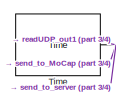
[diagram: root canvas - part 1/4, top center region]
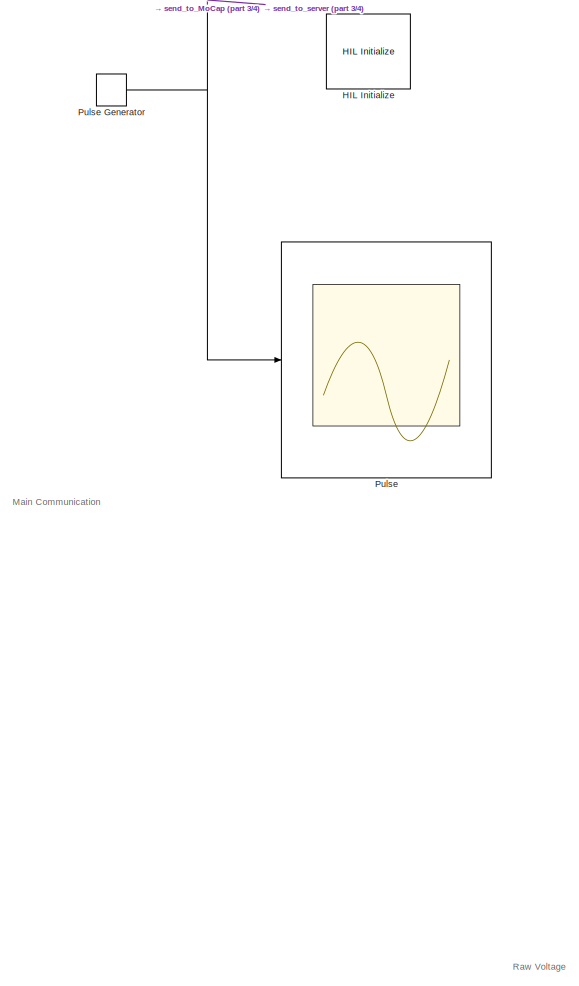
[diagram: root canvas - part 2/4, middle left region]
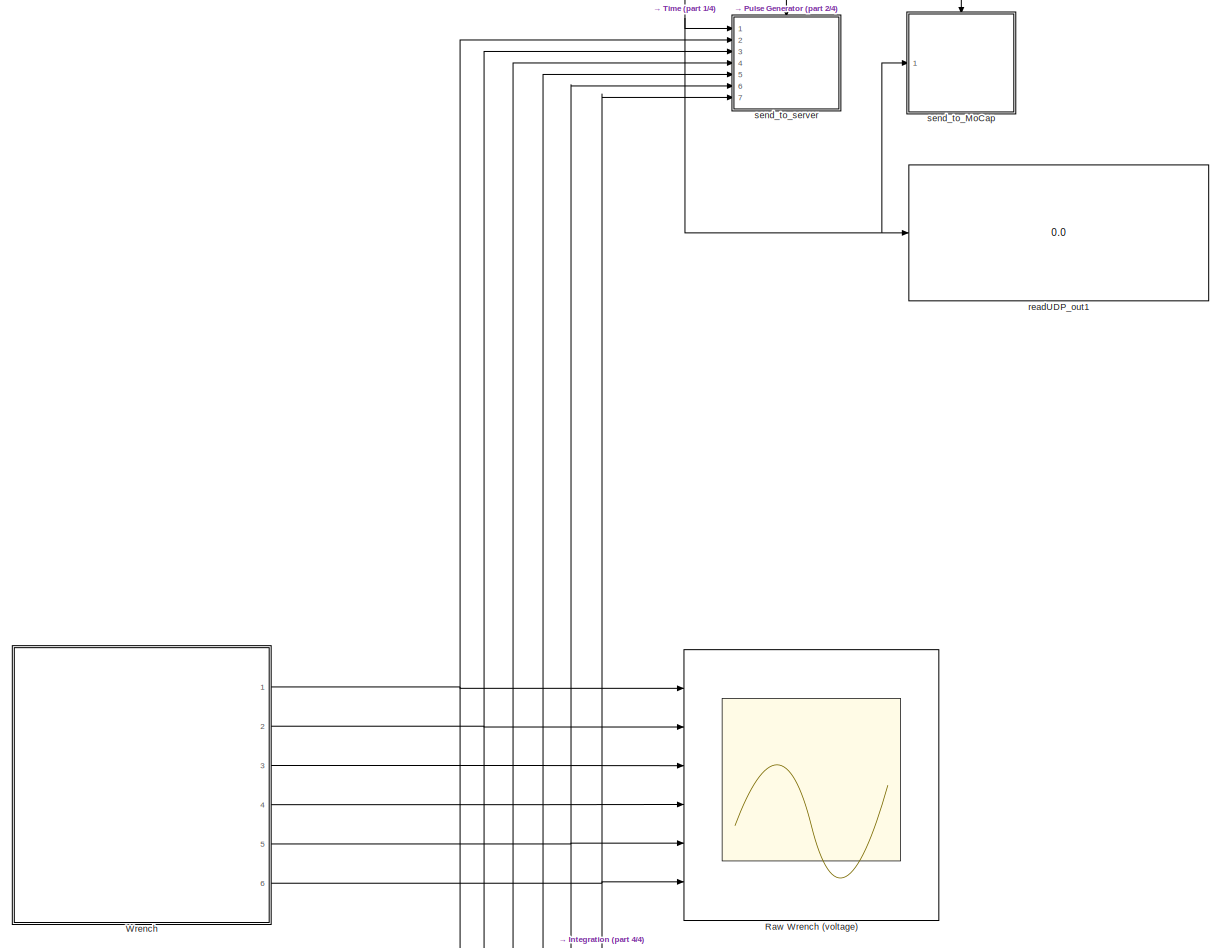
[diagram: root canvas - part 3/4, central region]
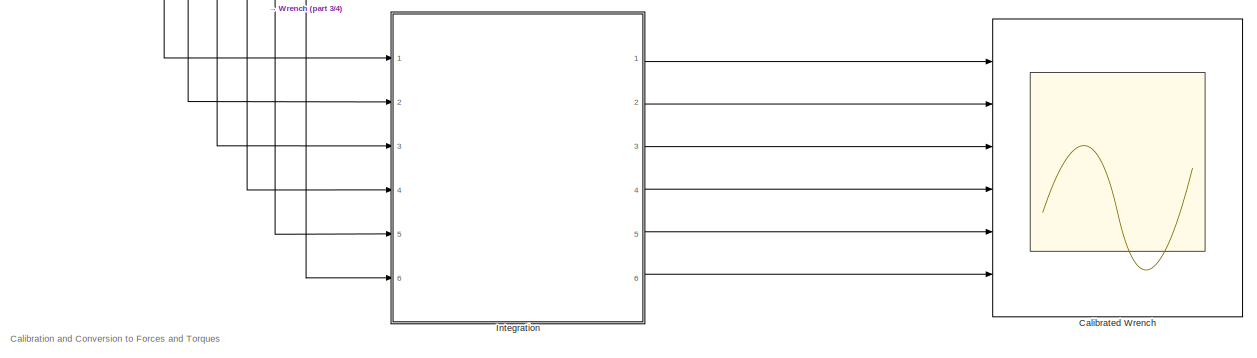
[diagram: root canvas - part 4/4, bottom right region]
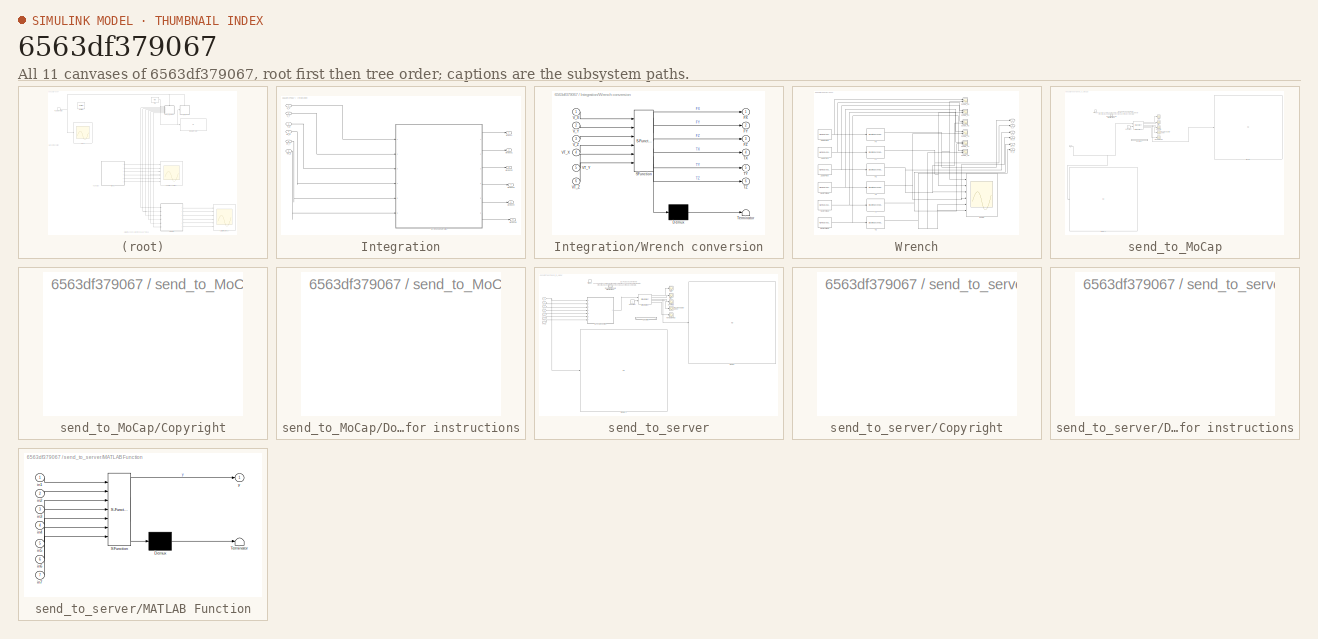
[diagram: thumbnail index - all 11 canvases of the model, root first then tree order]
MODEL slx_6563df379067
KIND model
CONFIG AbsTol = auto
CONFIG EnableMultiTasking = on
CONFIG FixedStep = 0.002
CONFIG MaxStep = auto
CONFIG MinStep = auto
CONFIG RelTol = 1e-3
CONFIG SampleTimeConstraint = Unconstrained
CONFIG Solver = FixedStepDiscrete
CONFIG SolverName = FixedStepDiscrete
CONFIG StartTime = 0.0
CONFIG StopTime = inf
BLOCK [Scope] Calibrated Wrench
  Floating = off
  NumInputPorts = 6
  Ports = [6]
  ScopeSpecificationString = Simulink.scopes.TimeScopeBlockCfg('CurrentConfiguration', extmgr.ConfigurationSet(extmgr.Configuration('Core','General UI',true),extmgr.Configuration('Core','Source UI',true),extmgr.Configuration('Sources','WiredSimulink',true,'DataLoggingVariableName','ScopeData14','DataLoggingLimitDataPoints',true,'DataLoggingSaveFormat','Array','DataLoggingDecimation','1','DataLoggingDecimateData',true),extmgr....<+5522ch>
BLOCK [Reference] HIL Initialize  REF=quarc_library/Data Acquisition/Generic/Configuration/HIL Initialize
  AttributesFormatString = %<object_name> (%<board_type>-%<board_number>)
  Ports = []
  Priority = -99
  SourceBlock = quarc_library/Data Acquisition/Generic/Configuration/HIL Initialize
  SourceProductName = QUARC Targets
  SourceType = HIL Initialize
  UserDataPersistent = on
BLOCK [SubSystem] Integration
  Ports = [6, 6]
  RequestExecContextInheritance = off
BLOCK [Inport] Integration/VT_X
  Port = 4
BLOCK [Inport] Integration/VT_Y
  Port = 5
BLOCK [Inport] Integration/VT_Z
  Port = 6
BLOCK [Inport] Integration/V_X
BLOCK [Inport] Integration/V_Y
  Port = 2
BLOCK [Inport] Integration/V_Z
  Port = 3
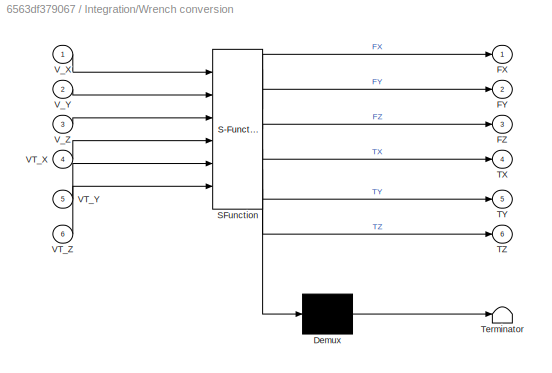
BLOCK [SubSystem] Integration/Wrench conversion
  ErrorFcn = Stateflow.Translate.translate
  PermitHierarchicalResolution = ExplicitOnly
  Ports = [6, 6]
  RequestExecContextInheritance = off
  SFBlockType = MATLAB Function
  TreatAsAtomicUnit = on
BLOCK [Demux] Integration/Wrench conversion/ Demux 
  Outputs = 1
  Ports = [1, 1]
BLOCK [S-Function] Integration/Wrench conversion/ SFunction 
  EnableBusSupport = on
  FunctionName = sf_sfun
  PortCounts = [6 7]
  Ports = [6, 7]
  SFcnIsStateOwnerBlock = off
  SFunctionDeploymentMode = off
  Tag = Stateflow S-Function 4
BLOCK [Terminator] Integration/Wrench conversion/ Terminator 
BLOCK [Outport] Integration/Wrench conversion/FX
BLOCK [Outport] Integration/Wrench conversion/FY
  Port = 2
BLOCK [Outport] Integration/Wrench conversion/FZ
  Port = 3
BLOCK [Outport] Integration/Wrench conversion/TX
  Port = 4
BLOCK [Outport] Integration/Wrench conversion/TY
  Port = 5
BLOCK [Outport] Integration/Wrench conversion/TZ
  Port = 6
BLOCK [Inport] Integration/Wrench conversion/VT_X
  Port = 4
BLOCK [Inport] Integration/Wrench conversion/VT_Y
  Port = 5
BLOCK [Inport] Integration/Wrench conversion/VT_Z
  Port = 6
BLOCK [Inport] Integration/Wrench conversion/V_X
BLOCK [Inport] Integration/Wrench conversion/V_Y
  Port = 2
BLOCK [Inport] Integration/Wrench conversion/V_Z
  Port = 3
BLOCK [Outport] Integration/wrench
BLOCK [Outport] Integration/wrench1
  Port = 2
BLOCK [Outport] Integration/wrench2
  Port = 3
BLOCK [Outport] Integration/wrench3
  Port = 4
BLOCK [Outport] Integration/wrench4
  Port = 5
BLOCK [Outport] Integration/wrench5
  Port = 6
BLOCK [Scope] Pulse
  Floating = off
  NumInputPorts = 1
  Ports = [1]
  ScopeSpecificationString = Simulink.scopes.TimeScopeBlockCfg('CurrentConfiguration', extmgr.ConfigurationSet(extmgr.Configuration('Core','General UI',true),extmgr.Configuration('Core','Source UI',true),extmgr.Configuration('Sources','WiredSimulink',true,'DataLoggingVariableName','ScopeData11','DataLoggingLimitDataPoints',true,'DataLoggingSaveFormat','Array','DataLoggingDecimation','1','DataLoggingDecimateData',true),extmgr....<+1678ch>
BLOCK [DiscretePulseGenerator] Pulse Generator
  Period = 0.004
  Ports = [0, 1]
  PulseType = Time based
  PulseWidth = 50
BLOCK [Scope] Raw Wrench (voltage)
  Floating = off
  NumInputPorts = 6
  Ports = [6]
  ScopeSpecificationString = Simulink.scopes.TimeScopeBlockCfg('CurrentConfiguration', extmgr.ConfigurationSet(extmgr.Configuration('Core','General UI',true),extmgr.Configuration('Core','Source UI',true),extmgr.Configuration('Sources','WiredSimulink',true,'DataLoggingVariableName','ScopeData7','DataLoggingLimitDataPoints',true,'DataLoggingSaveFormat','Array','DataLoggingDecimation','1','DataLoggingDecimateData',true),extmgr.C...<+5153ch>
BLOCK [Reference] Time  REF=quarc_library/Sources/Time/Time
  Ports = [0, 1]
  SourceBlock = quarc_library/Sources/Time/Time
  SourceProductName = QUARC Targets
  SourceType = Time
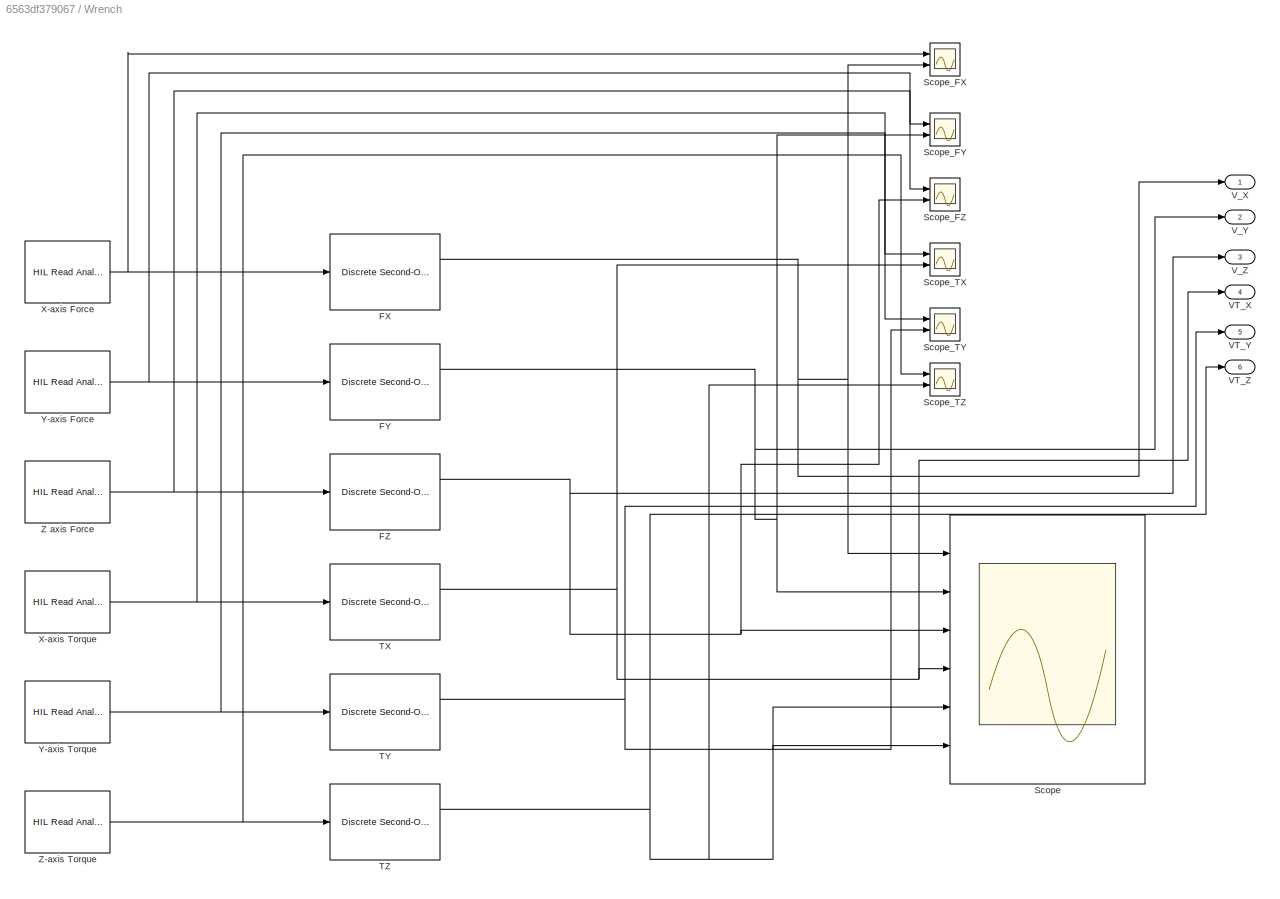
BLOCK [SubSystem] Wrench
  Ports = [0, 6]
  RequestExecContextInheritance = off
BLOCK [Reference] Wrench/FX  REF=quarc_library/Discrete/Discrete Second-Order
Low-Pass Filter
  Ports = [1, 2]
  SourceBlock = quarc_library/Discrete/Discrete Second-Order\nLow-Pass Filter
  SourceProductName = QUARC Targets
  SourceType = Discrete Second-Order Low-Pass Filter
BLOCK [Reference] Wrench/FY  REF=quarc_library/Discrete/Discrete Second-Order
Low-Pass Filter
  Ports = [1, 2]
  SourceBlock = quarc_library/Discrete/Discrete Second-Order\nLow-Pass Filter
  SourceProductName = QUARC Targets
  SourceType = Discrete Second-Order Low-Pass Filter
BLOCK [Reference] Wrench/FZ  REF=quarc_library/Discrete/Discrete Second-Order
Low-Pass Filter
  Ports = [1, 2]
  SourceBlock = quarc_library/Discrete/Discrete Second-Order\nLow-Pass Filter
  SourceProductName = QUARC Targets
  SourceType = Discrete Second-Order Low-Pass Filter
BLOCK [Scope] Wrench/Scope
  Floating = off
  NumInputPorts = 6
  Ports = [6]
  ScopeSpecificationString = Simulink.scopes.TimeScopeBlockCfg('CurrentConfiguration', extmgr.ConfigurationSet(extmgr.Configuration('Core','General UI',true),extmgr.Configuration('Core','Source UI',true),extmgr.Configuration('Sources','WiredSimulink',true,'DataLoggingLimitDataPoints',true,'DataLoggingSaveFormat','Array','DataLoggingDecimation','1','DataLoggingDecimateData',true),extmgr.Configuration('Visuals','Time Domain',tr...<+5227ch>
BLOCK [Scope] Wrench/Scope_FX
  Floating = off
  NumInputPorts = 2
  Ports = [2]
  ScopeSpecificationString = C++SS(StrPVP('Location','[9, 56, 953, 1031]'),StrPVP('Open','off'),MxPVP('AxesTitles',54,'struct(''axes1'',''%<SignalLabel>'',''axes2'',''%<SignalLabel>'')'),MxPVP('ScopeGraphics',57,'struct(''FigureColor'',''[0.5 0.5 0.5]'',''AxesColor'',''[0 0 0]'',''AxesTickColor'',''[1 1 1]'',''LineColors'',''[1 1 0;1 0 1;0 1 1;1 0 0;0 1 0;0 0 1]'',''LineStyles'',''-|-|-|-|-|-'',''LineWidths'',''[0.5 0.5 0.5 0...<+337ch>
BLOCK [Scope] Wrench/Scope_FY
  Floating = off
  NumInputPorts = 2
  Ports = [2]
  ScopeSpecificationString = C++SS(StrPVP('Location','[188, 365, 512, 604]'),StrPVP('Open','off'),MxPVP('AxesTitles',54,'struct(''axes1'',''%<SignalLabel>'',''axes2'',''%<SignalLabel>'')'),MxPVP('ScopeGraphics',57,'struct(''FigureColor'',''[0.5 0.5 0.5]'',''AxesColor'',''[0 0 0]'',''AxesTickColor'',''[1 1 1]'',''LineColors'',''[1 1 0;1 0 1;0 1 1;1 0 0;0 1 0;0 0 1]'',''LineStyles'',''-|-|-|-|-|-'',''LineWidths'',''[0.5 0.5 0.5...<+312ch>
BLOCK [Scope] Wrench/Scope_FZ
  Floating = off
  NumInputPorts = 2
  Ports = [2]
  ScopeSpecificationString = C++SS(StrPVP('Location','[188, 365, 512, 604]'),StrPVP('Open','off'),MxPVP('AxesTitles',54,'struct(''axes1'',''%<SignalLabel>'',''axes2'',''%<SignalLabel>'')'),MxPVP('ScopeGraphics',57,'struct(''FigureColor'',''[0.5 0.5 0.5]'',''AxesColor'',''[0 0 0]'',''AxesTickColor'',''[1 1 1]'',''LineColors'',''[1 1 0;1 0 1;0 1 1;1 0 0;0 1 0;0 0 1]'',''LineStyles'',''-|-|-|-|-|-'',''LineWidths'',''[0.5 0.5 0.5...<+316ch>
BLOCK [Scope] Wrench/Scope_TX
  Floating = off
  NumInputPorts = 2
  Ports = [2]
  ScopeSpecificationString = Simulink.scopes.TimeScopeBlockCfg('CurrentConfiguration', extmgr.ConfigurationSet(extmgr.Configuration('Core','General UI',true),extmgr.Configuration('Core','Source UI',true),extmgr.Configuration('Sources','WiredSimulink',true,'DataLoggingVariableName','ScopeData4','DataLoggingLimitDataPoints',true,'DataLoggingSaveFormat','Array','DataLoggingDecimation','1','DataLoggingDecimateData',true),extmgr.C...<+2354ch>
BLOCK [Scope] Wrench/Scope_TY
  Floating = off
  NumInputPorts = 2
  Ports = [2]
  ScopeSpecificationString = Simulink.scopes.TimeScopeBlockCfg('CurrentConfiguration', extmgr.ConfigurationSet(extmgr.Configuration('Core','General UI',true),extmgr.Configuration('Core','Source UI',true),extmgr.Configuration('Sources','WiredSimulink',true,'DataLoggingVariableName','ScopeData5','DataLoggingLimitDataPoints',true,'DataLoggingSaveFormat','Array','DataLoggingDecimation','1','DataLoggingDecimateData',true),extmgr.C...<+2354ch>
BLOCK [Scope] Wrench/Scope_TZ
  Floating = off
  NumInputPorts = 2
  Ports = [2]
  ScopeSpecificationString = Simulink.scopes.TimeScopeBlockCfg('CurrentConfiguration', extmgr.ConfigurationSet(extmgr.Configuration('Core','General UI',true),extmgr.Configuration('Core','Source UI',true),extmgr.Configuration('Sources','WiredSimulink',true,'DataLoggingVariableName','ScopeData6','DataLoggingLimitDataPoints',true,'DataLoggingSaveFormat','Array','DataLoggingDecimation','1','DataLoggingDecimateData',true),extmgr.C...<+2352ch>
BLOCK [Reference] Wrench/TX  REF=quarc_library/Discrete/Discrete Second-Order
Low-Pass Filter
  Ports = [1, 2]
  SourceBlock = quarc_library/Discrete/Discrete Second-Order\nLow-Pass Filter
  SourceProductName = QUARC Targets
  SourceType = Discrete Second-Order Low-Pass Filter
BLOCK [Reference] Wrench/TY  REF=quarc_library/Discrete/Discrete Second-Order
Low-Pass Filter
  Ports = [1, 2]
  SourceBlock = quarc_library/Discrete/Discrete Second-Order\nLow-Pass Filter
  SourceProductName = QUARC Targets
  SourceType = Discrete Second-Order Low-Pass Filter
BLOCK [Reference] Wrench/TZ  REF=quarc_library/Discrete/Discrete Second-Order
Low-Pass Filter
  Ports = [1, 2]
  SourceBlock = quarc_library/Discrete/Discrete Second-Order\nLow-Pass Filter
  SourceProductName = QUARC Targets
  SourceType = Discrete Second-Order Low-Pass Filter
BLOCK [Outport] Wrench/VT_X
  Port = 4
BLOCK [Outport] Wrench/VT_Y
  Port = 5
BLOCK [Outport] Wrench/VT_Z
  Port = 6
BLOCK [Outport] Wrench/V_X
BLOCK [Outport] Wrench/V_Y
  Port = 2
BLOCK [Outport] Wrench/V_Z
  Port = 3
BLOCK [Reference] Wrench/X-axis Force   REF=quarc_library/Data Acquisition/Generic/Immediate I//O/HIL Read Analog
  AttributesFormatString = (%<object_name>)
  Ports = [0, 1]
  SourceBlock = quarc_library/Data Acquisition/Generic/Immediate I//O/HIL Read Analog
  SourceProductName = QUARC Targets
  SourceType = HIL Read Analog
  UserDataPersistent = on
BLOCK [Reference] Wrench/X-axis Torque  REF=quarc_library/Data Acquisition/Generic/Immediate I//O/HIL Read Analog
  AttributesFormatString = (%<object_name>)
  Ports = [0, 1]
  SourceBlock = quarc_library/Data Acquisition/Generic/Immediate I//O/HIL Read Analog
  SourceProductName = QUARC Targets
  SourceType = HIL Read Analog
  UserDataPersistent = on
BLOCK [Reference] Wrench/Y-axis Force  REF=quarc_library/Data Acquisition/Generic/Immediate I//O/HIL Read Analog
  AttributesFormatString = (%<object_name>)
  Ports = [0, 1]
  SourceBlock = quarc_library/Data Acquisition/Generic/Immediate I//O/HIL Read Analog
  SourceProductName = QUARC Targets
  SourceType = HIL Read Analog
  UserDataPersistent = on
BLOCK [Reference] Wrench/Y-axis Torque  REF=quarc_library/Data Acquisition/Generic/Immediate I//O/HIL Read Analog
  AttributesFormatString = (%<object_name>)
  Ports = [0, 1]
  SourceBlock = quarc_library/Data Acquisition/Generic/Immediate I//O/HIL Read Analog
  SourceProductName = QUARC Targets
  SourceType = HIL Read Analog
  UserDataPersistent = on
BLOCK [Reference] Wrench/Z axis Force  REF=quarc_library/Data Acquisition/Generic/Immediate I//O/HIL Read Analog
  AttributesFormatString = (%<object_name>)
  Ports = [0, 1]
  SourceBlock = quarc_library/Data Acquisition/Generic/Immediate I//O/HIL Read Analog
  SourceProductName = QUARC Targets
  SourceType = HIL Read Analog
  UserDataPersistent = on
BLOCK [Reference] Wrench/Z-axis Torque  REF=quarc_library/Data Acquisition/Generic/Immediate I//O/HIL Read Analog
  AttributesFormatString = (%<object_name>)
  Ports = [0, 1]
  SourceBlock = quarc_library/Data Acquisition/Generic/Immediate I//O/HIL Read Analog
  SourceProductName = QUARC Targets
  SourceType = HIL Read Analog
  UserDataPersistent = on
BLOCK [Display] readUDP_out1
  Decimation = 1
  Ports = [1]
BLOCK [SubSystem] send_to_MoCap
  Ports = [1, 0, 0, 1]
  RequestExecContextInheritance = off
  SystemSampleTime = 0.1
BLOCK [Constant] send_to_MoCap/Constant
BLOCK [SubSystem] send_to_MoCap/<copyright redacted>
  OpenFcn = web('http://www.quanser.com/');
  Permissions = NoReadOrWrite
  PermitHierarchicalResolution = None
  Ports = []
  RequestExecContextInheritance = off
BLOCK [Display] send_to_MoCap/Display
  Decimation = 1
  Ports = [1]
BLOCK [Display] send_to_MoCap/Display1
  Decimation = 1
  Ports = [1]
BLOCK [SubSystem] send_to_MoCap/Double-click here for instructions
  OpenFcn = helpview(fullfile(fileparts(which(bdroot)), 'html', 'quarc_basic_communications_demo.html'));
  Permissions = NoReadOrWrite
  PermitHierarchicalResolution = None
  Ports = []
  RequestExecContextInheritance = off
BLOCK [Scope] send_to_MoCap/Error
  Floating = off
  NumInputPorts = 1
  Ports = [1]
  ScopeSpecificationString = C++SS(StrPVP('Location','[147, 86, 471, 325]'),StrPVP('Open','off'),MxPVP('AxesTitles',54,'struct(''axes1'',''%<SignalLabel>'')'),MxPVP('ScopeGraphics',57,'struct(''FigureColor'',''[0.5 0.5 0.5]'',''AxesColor'',''[0 0 0]'',''AxesTickColor'',''[1 1 1]'',''LineColors'',''[1 1 0;1 0 1;0 1 1;1 0 0;0 1 0;0 0 1]'',''LineStyles'',''-|-|-|-|-|-'',''LineWidths'',''[0.5 0.5 0.5 0.5 0.5 0.5]'',''MarkerStyles...<+270ch>
BLOCK [Scope] send_to_MoCap/New Data Flag
  Floating = off
  NumInputPorts = 1
  Ports = [1]
  ScopeSpecificationString = C++SS(StrPVP('Location','[9, 662, 713, 851]'),StrPVP('Open','off'),MxPVP('AxesTitles',54,'struct(''axes1'',''%<SignalLabel>'')'),MxPVP('ScopeGraphics',57,'struct(''FigureColor'',''[0.5 0.5 0.5]'',''AxesColor'',''[0 0 0]'',''AxesTickColor'',''[1 1 1]'',''LineColors'',''[1 1 0;1 0 1;0 1 1;1 0 0;0 1 0;0 0 1]'',''LineStyles'',''-|-|-|-|-|-'',''LineWidths'',''[0.5 0.5 0.5 0.5 0.5 0.5]'',''MarkerStyles'...<+269ch>
BLOCK [Scope] send_to_MoCap/Received Data - Server
  Floating = off
  NumInputPorts = 1
  Ports = [1]
  ScopeSpecificationString = C++SS(StrPVP('Location','[352, 421, 676, 605]'),StrPVP('Open','off'),MxPVP('AxesTitles',54,'struct(''axes1'',''%<SignalLabel>'')'),MxPVP('ScopeGraphics',57,'struct(''FigureColor'',''[0.5 0.5 0.5]'',''AxesColor'',''[0 0 0]'',''AxesTickColor'',''[1 1 1]'',''LineColors'',''[1 1 0;1 0 1;0 1 1;1 0 0;0 1 0;0 0 1]'',''LineStyles'',''-|-|-|-|-|-'',''LineWidths'',''[0.5 0.5 0.5 0.5 0.5 0.5]'',''MarkerStyle...<+318ch>
BLOCK [Scope] send_to_MoCap/Sent Flag
  Floating = off
  NumInputPorts = 1
  Ports = [1]
  ScopeSpecificationString = C++SS(StrPVP('Location','[230, 286, 554, 526]'),StrPVP('Open','off'),MxPVP('AxesTitles',54,'struct(''axes1'',''%<SignalLabel>'')'),MxPVP('ScopeGraphics',57,'struct(''FigureColor'',''[0.5 0.5 0.5]'',''AxesColor'',''[0 0 0]'',''AxesTickColor'',''[1 1 1]'',''LineColors'',''[1 1 0;1 0 1;0 1 1;1 0 0;0 1 0;0 0 1]'',''LineStyles'',''-|-|-|-|-|-'',''LineWidths'',''[0.5 0.5 0.5 0.5 0.5 0.5]'',''MarkerStyle...<+316ch>
BLOCK [Scope] send_to_MoCap/State
  Floating = off
  NumInputPorts = 1
  Ports = [1]
  ScopeSpecificationString = C++SS(StrPVP('Location','[145, 384, 469, 623]'),StrPVP('Open','off'),MxPVP('AxesTitles',54,'struct(''axes1'',''%<SignalLabel>'')'),StrPVP('ShowLegends','off'),StrPVP('SaveName','ScopeData13'),StrPVP('DataFormat','StructureWithTime'),StrPVP('BlockParamSampleTime','0'),StrPVP('LimitDataPoints','on'),StrPVP('Decimation','1'),StrPVP('BlockParamSampleInput','off'))
BLOCK [Reference] send_to_MoCap/Stream Client  REF=quarc_library/Communications/Basic/Stream Client
  AttributesFormatString = "udp://192.168.0.100:36500"
  Ports = [2, 5]
  SourceBlock = quarc_library/Communications/Basic/Stream Client
  SourceProductName = QUARC Targets
  SourceType = Stream Client
BLOCK [TriggerPort] send_to_MoCap/Trigger
  Ports = []
  StatesWhenEnabling = held
  TriggerType = falling
  VariantControl = (inherit)
BLOCK [Inport] send_to_MoCap/t
BLOCK [SubSystem] send_to_server
  Ports = [7, 0, 0, 1]
  RequestExecContextInheritance = off
  SystemSampleTime = 0.1
BLOCK [Constant] send_to_server/Constant
BLOCK [SubSystem] send_to_server/<copyright redacted>
  OpenFcn = web('http://www.quanser.com/');
  Permissions = NoReadOrWrite
  PermitHierarchicalResolution = None
  Ports = []
  RequestExecContextInheritance = off
BLOCK [Display] send_to_server/Display
  Decimation = 1
  Ports = [1]
BLOCK [Display] send_to_server/Display1
  Decimation = 1
  Ports = [1]
BLOCK [SubSystem] send_to_server/Double-click here for instructions
  OpenFcn = helpview(fullfile(fileparts(which(bdroot)), 'html', 'quarc_basic_communications_demo.html'));
  Permissions = NoReadOrWrite
  PermitHierarchicalResolution = None
  Ports = []
  RequestExecContextInheritance = off
BLOCK [Scope] send_to_server/Error
  Floating = off
  NumInputPorts = 1
  Ports = [1]
  ScopeSpecificationString = C++SS(StrPVP('Location','[147, 86, 471, 325]'),StrPVP('Open','off'),MxPVP('AxesTitles',54,'struct(''axes1'',''%<SignalLabel>'')'),MxPVP('ScopeGraphics',57,'struct(''FigureColor'',''[0.5 0.5 0.5]'',''AxesColor'',''[0 0 0]'',''AxesTickColor'',''[1 1 1]'',''LineColors'',''[1 1 0;1 0 1;0 1 1;1 0 0;0 1 0;0 0 1]'',''LineStyles'',''-|-|-|-|-|-'',''LineWidths'',''[0.5 0.5 0.5 0.5 0.5 0.5]'',''MarkerStyles...<+270ch>
BLOCK [SubSystem] send_to_server/MATLAB Function
  ErrorFcn = Stateflow.Translate.translate
  PermitHierarchicalResolution = ExplicitOnly
  Ports = [7, 1]
  RequestExecContextInheritance = off
  SFBlockType = MATLAB Function
  TreatAsAtomicUnit = on
BLOCK [Demux] send_to_server/MATLAB Function/ Demux 
  Outputs = 1
  Ports = [1, 1]
BLOCK [S-Function] send_to_server/MATLAB Function/ SFunction 
  EnableBusSupport = on
  FunctionName = sf_sfun
  PortCounts = [7 2]
  Ports = [7, 2]
  SFcnIsStateOwnerBlock = off
  SFunctionDeploymentMode = off
  Tag = Stateflow S-Function 2
BLOCK [Terminator] send_to_server/MATLAB Function/ Terminator 
BLOCK [Inport] send_to_server/MATLAB Function/in1
BLOCK [Inport] send_to_server/MATLAB Function/in2
  Port = 2
BLOCK [Inport] send_to_server/MATLAB Function/in3
  Port = 3
BLOCK [Inport] send_to_server/MATLAB Function/in4
  Port = 4
BLOCK [Inport] send_to_server/MATLAB Function/in5
  Port = 5
BLOCK [Inport] send_to_server/MATLAB Function/in6
  Port = 6
BLOCK [Inport] send_to_server/MATLAB Function/in7
  Port = 7
BLOCK [Outport] send_to_server/MATLAB Function/y
BLOCK [Scope] send_to_server/New Data Flag
  Floating = off
  NumInputPorts = 1
  Ports = [1]
  ScopeSpecificationString = C++SS(StrPVP('Location','[9, 662, 713, 851]'),StrPVP('Open','off'),MxPVP('AxesTitles',54,'struct(''axes1'',''%<SignalLabel>'')'),MxPVP('ScopeGraphics',57,'struct(''FigureColor'',''[0.5 0.5 0.5]'',''AxesColor'',''[0 0 0]'',''AxesTickColor'',''[1 1 1]'',''LineColors'',''[1 1 0;1 0 1;0 1 1;1 0 0;0 1 0;0 0 1]'',''LineStyles'',''-|-|-|-|-|-'',''LineWidths'',''[0.5 0.5 0.5 0.5 0.5 0.5]'',''MarkerStyles'...<+269ch>
BLOCK [Scope] send_to_server/Received Data - Server
  Floating = off
  NumInputPorts = 1
  Ports = [1]
  ScopeSpecificationString = C++SS(StrPVP('Location','[352, 421, 676, 605]'),StrPVP('Open','off'),MxPVP('AxesTitles',54,'struct(''axes1'',''%<SignalLabel>'')'),MxPVP('ScopeGraphics',57,'struct(''FigureColor'',''[0.5 0.5 0.5]'',''AxesColor'',''[0 0 0]'',''AxesTickColor'',''[1 1 1]'',''LineColors'',''[1 1 0;1 0 1;0 1 1;1 0 0;0 1 0;0 0 1]'',''LineStyles'',''-|-|-|-|-|-'',''LineWidths'',''[0.5 0.5 0.5 0.5 0.5 0.5]'',''MarkerStyle...<+314ch>
BLOCK [Scope] send_to_server/Sent Flag
  Floating = off
  NumInputPorts = 1
  Ports = [1]
  ScopeSpecificationString = C++SS(StrPVP('Location','[230, 286, 554, 526]'),StrPVP('Open','off'),MxPVP('AxesTitles',54,'struct(''axes1'',''%<SignalLabel>'')'),MxPVP('ScopeGraphics',57,'struct(''FigureColor'',''[0.5 0.5 0.5]'',''AxesColor'',''[0 0 0]'',''AxesTickColor'',''[1 1 1]'',''LineColors'',''[1 1 0;1 0 1;0 1 1;1 0 0;0 1 0;0 0 1]'',''LineStyles'',''-|-|-|-|-|-'',''LineWidths'',''[0.5 0.5 0.5 0.5 0.5 0.5]'',''MarkerStyle...<+316ch>
BLOCK [Scope] send_to_server/State
  Floating = off
  NumInputPorts = 1
  Ports = [1]
  ScopeSpecificationString = C++SS(StrPVP('Location','[145, 384, 469, 623]'),StrPVP('Open','off'),MxPVP('AxesTitles',54,'struct(''axes1'',''%<SignalLabel>'')'),StrPVP('ShowLegends','off'),StrPVP('SaveName','ScopeData13'),StrPVP('DataFormat','StructureWithTime'),StrPVP('BlockParamSampleTime','0'),StrPVP('LimitDataPoints','on'),StrPVP('Decimation','1'),StrPVP('BlockParamSampleInput','off'))
BLOCK [Reference] send_to_server/Stream Client  REF=quarc_library/Communications/Basic/Stream Client
  AttributesFormatString = "udp://192.168.0.101:36500"
  Ports = [2, 5]
  SourceBlock = quarc_library/Communications/Basic/Stream Client
  SourceProductName = QUARC Targets
  SourceType = Stream Client
BLOCK [TriggerPort] send_to_server/Trigger
  Ports = []
  StatesWhenEnabling = held
  TriggerType = falling
  VariantControl = (inherit)
BLOCK [Inport] send_to_server/VT_X
  Port = 5
BLOCK [Inport] send_to_server/VT_Y
  Port = 6
BLOCK [Inport] send_to_server/VT_Z
  Port = 7
BLOCK [Inport] send_to_server/V_X
  Port = 2
BLOCK [Inport] send_to_server/V_Y
  Port = 3
BLOCK [Inport] send_to_server/V_Z
  Port = 4
BLOCK [Inport] send_to_server/t
ANNOTATION (root): Calibration and Conversion to Forces and Torques
ANNOTATION (root): Raw Voltage
ANNOTATION (root): Main Communication
ANNOTATION send_to_MoCap: QUARC Basic Server Demo
ANNOTATION send_to_MoCap: To change the communication protocol or options, change the URI parameter of the Stream Server block. See the help page of this block for details.
ANNOTATION send_to_server: QUARC Basic Server Demo
ANNOTATION send_to_server: To change the communication protocol or options, change the URI parameter of the Stream Server block. See the help page of this block for details.
LINE Integration/VT_X:1 -> Integration/Wrench conversion:4
LINE Integration/VT_Y:1 -> Integration/Wrench conversion:5
LINE Integration/VT_Z:1 -> Integration/Wrench conversion:6
LINE Integration/V_X:1 -> Integration/Wrench conversion:1
LINE Integration/V_Y:1 -> Integration/Wrench conversion:2
LINE Integration/V_Z:1 -> Integration/Wrench conversion:3
LINE Integration/Wrench conversion:1 -> Integration/wrench:1
LINE Integration/Wrench conversion:2 -> Integration/wrench1:1
LINE Integration/Wrench conversion:3 -> Integration/wrench2:1
LINE Integration/Wrench conversion:4 -> Integration/wrench3:1
LINE Integration/Wrench conversion:5 -> Integration/wrench4:1
LINE Integration/Wrench conversion:6 -> Integration/wrench5:1
LINE Integration:1 -> Calibrated Wrench:1
LINE Integration:2 -> Calibrated Wrench:2
LINE Integration:3 -> Calibrated Wrench:3
LINE Integration:4 -> Calibrated Wrench:4
LINE Integration:5 -> Calibrated Wrench:5
LINE Integration:6 -> Calibrated Wrench:6
NET Pulse Generator:1 -> Pulse:1, send_to_MoCap:trigger, send_to_server:trigger
NET Time:1 -> readUDP_out1:1, send_to_MoCap:1, send_to_server:1
NET Wrench/FX:1 -> Wrench/Scope:1, Wrench/Scope_FX:2, Wrench/V_X:1
NET Wrench/FY:1 -> Wrench/Scope:2, Wrench/Scope_FY:2, Wrench/V_Y:1
NET Wrench/FZ:1 -> Wrench/Scope:3, Wrench/Scope_FZ:2, Wrench/V_Z:1
NET Wrench/TX:1 -> Wrench/Scope:4, Wrench/Scope_TX:2, Wrench/VT_X:1
NET Wrench/TY:1 -> Wrench/Scope:5, Wrench/Scope_TY:2, Wrench/VT_Y:1
NET Wrench/TZ:1 -> Wrench/Scope:6, Wrench/Scope_TZ:2, Wrench/VT_Z:1
NET Wrench/X-axis Force :1 -> Wrench/FX:1, Wrench/Scope_FX:1
NET Wrench/X-axis Torque:1 -> Wrench/Scope_TX:1, Wrench/TX:1
NET Wrench/Y-axis Force:1 -> Wrench/FY:1, Wrench/Scope_FY:1
NET Wrench/Y-axis Torque:1 -> Wrench/Scope_TY:1, Wrench/TY:1
NET Wrench/Z axis Force:1 -> Wrench/FZ:1, Wrench/Scope_FZ:1
NET Wrench/Z-axis Torque:1 -> Wrench/Scope_TZ:1, Wrench/TZ:1
NET Wrench:1 -> Integration:1, Raw Wrench (voltage):1, send_to_server:2
NET Wrench:2 -> Integration:2, Raw Wrench (voltage):2, send_to_server:3
NET Wrench:3 -> Integration:3, Raw Wrench (voltage):3, send_to_server:4
NET Wrench:4 -> Integration:4, Raw Wrench (voltage):4, send_to_server:5
NET Wrench:5 -> Integration:5, Raw Wrench (voltage):5, send_to_server:6
NET Wrench:6 -> Integration:6, Raw Wrench (voltage):6, send_to_server:7
LINE send_to_MoCap/Constant:1 -> send_to_MoCap/Stream Client:2
LINE send_to_MoCap/Stream Client:1 -> send_to_MoCap/State:1
LINE send_to_MoCap/Stream Client:2 -> send_to_MoCap/Error:1
NET send_to_MoCap/Stream Client:3 -> send_to_MoCap/Display:1, send_to_MoCap/Sent Flag:1
LINE send_to_MoCap/Stream Client:4 -> send_to_MoCap/Received Data - Server:1
LINE send_to_MoCap/Stream Client:5 -> send_to_MoCap/New Data Flag:1
NET send_to_MoCap/t:1 -> send_to_MoCap/Display1:1, send_to_MoCap/Stream Client:1
LINE send_to_server/Constant:1 -> send_to_server/Stream Client:2
LINE send_to_server/MATLAB Function:1 -> send_to_server/Stream Client:1
LINE send_to_server/Stream Client:1 -> send_to_server/State:1
LINE send_to_server/Stream Client:2 -> send_to_server/Error:1
NET send_to_server/Stream Client:3 -> send_to_server/Display:1, send_to_server/Sent Flag:1
LINE send_to_server/Stream Client:4 -> send_to_server/Received Data - Server:1
LINE send_to_server/Stream Client:5 -> send_to_server/New Data Flag:1
LINE send_to_server/VT_X:1 -> send_to_server/MATLAB Function:5
LINE send_to_server/VT_Y:1 -> send_to_server/MATLAB Function:6
LINE send_to_server/VT_Z:1 -> send_to_server/MATLAB Function:7
LINE send_to_server/V_X:1 -> send_to_server/MATLAB Function:2
LINE send_to_server/V_Y:1 -> send_to_server/MATLAB Function:3
LINE send_to_server/V_Z:1 -> send_to_server/MATLAB Function:4
NET send_to_server/t:1 -> send_to_server/Display1:1, send_to_server/MATLAB Function:1
note: NET lines group one-source signal fan-out (src -> all destinations, sorted); 1:1 wires keep LINE
CHART send_to_server/MATLAB Function states=1 transitions=1
  STATE_LABEL 'eML_blk_kernel()'
  STATE_LABEL 'SCRIPT:\nfunction y = fcn(in1,in2,in3,in4,in5,in6,in7)\n%#codegen\n\ny = [in1,in2,in3,in4,in5,in6,in7]'
CHART Integration/Wrench conversion states=1 transitions=1
  STATE_LABEL 'eML_blk_kernel()'
  STATE_LABEL 'SCRIPT:\nfunction [FX,FY,FZ,TX,TY,TZ] = volt2wrench(V_X,V_Y,V_Z,VT_X,VT_Y,VT_Z)\n\n%% Calibration matrix from Nano43 (FT32831)\n%<FTSensor  Serial="FT32831" BodyStyle="Nano43" Family="DAQ" NumGages="6" CalFileVersion="1.1">\n%\t<Calibration  PartNumber="SI-36-0.5" CalDate="12/14/2020" ForceUnits="N" TorqueUnits="N-mm"...\n\n% C = [  0.02098  -0.02876  -0.05237   4.51544  -0.05447  -4.46284 \n%      -0.1371...<+1753ch>'
CHART  states=0 transitions=0
CHART  states=0 transitions=0
